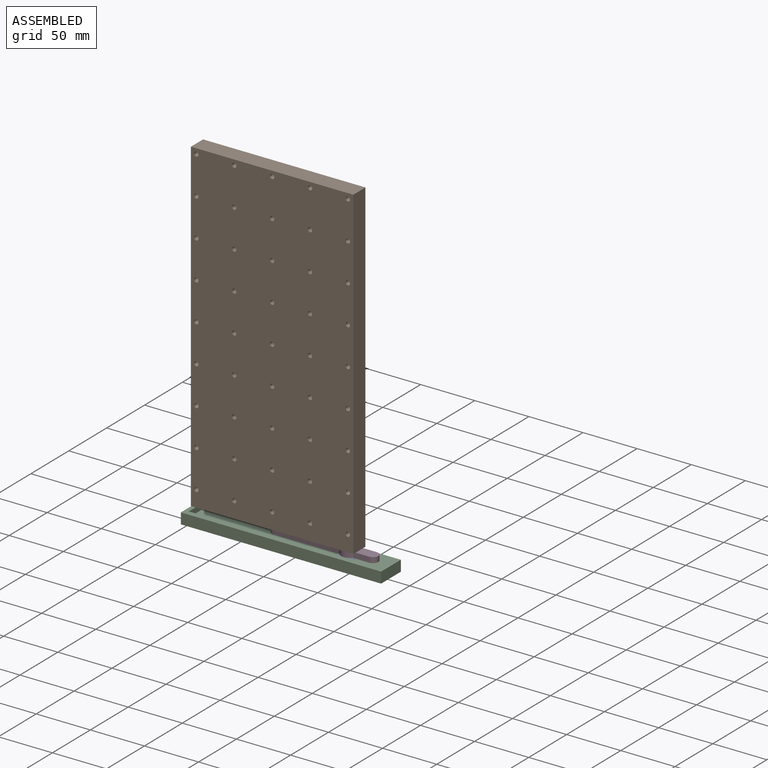
[diagram: assembled view]
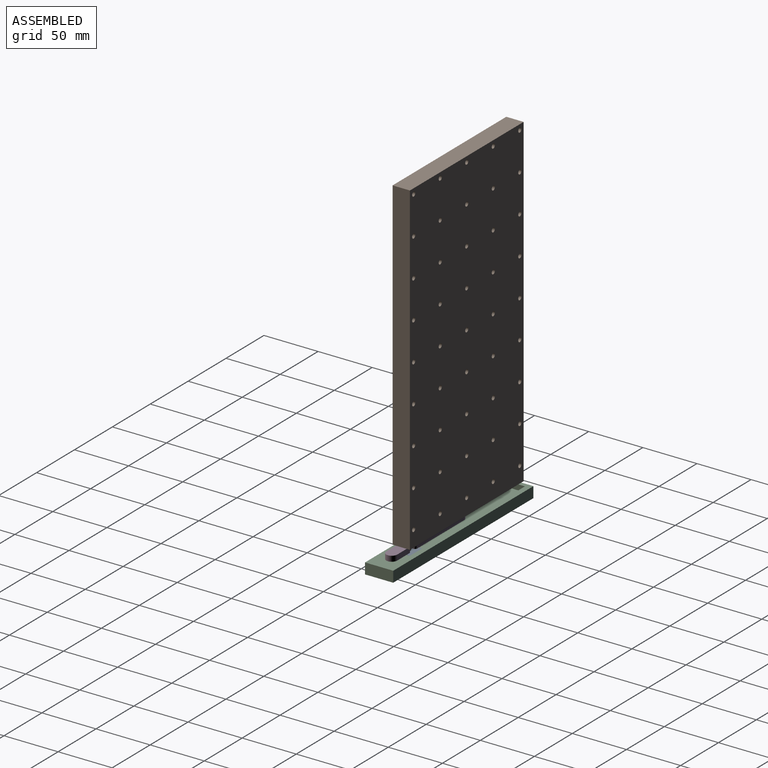
[diagram: assembled view, second angle]
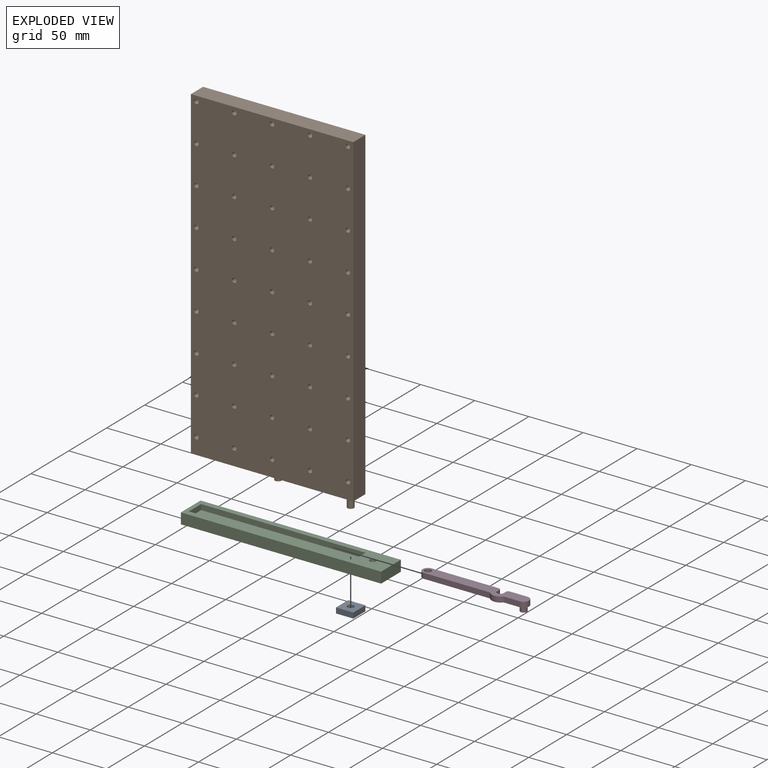
[diagram: exploded view]
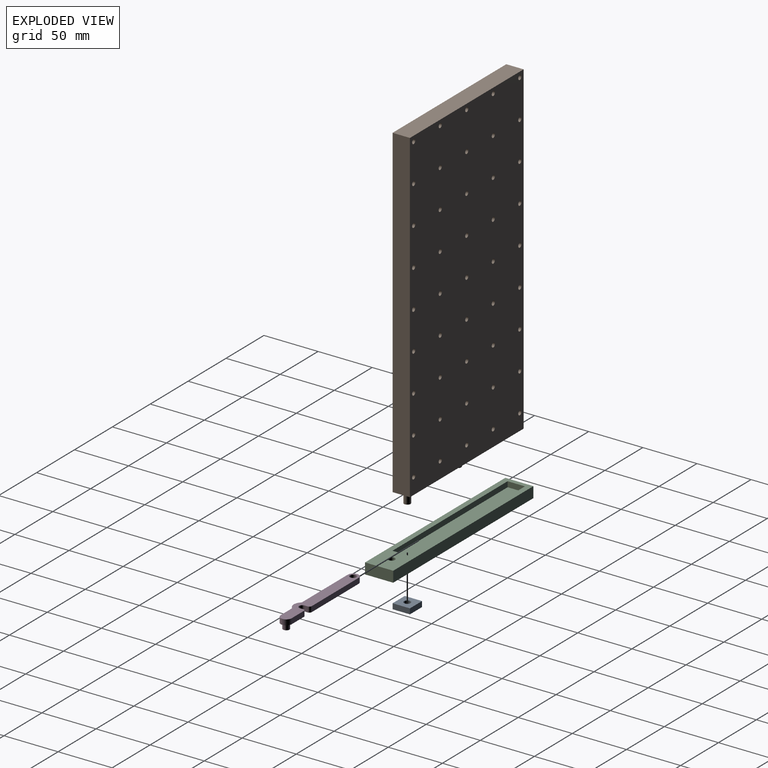
[diagram: exploded view, second angle]
ASSEMBLY  parts=4 mates=4
PART A: 7 faces, bbox 16x16x5 mm
  f0: plane 16x5mm, normal (1,0,0), area 80mm2, adj f1,f4,f5,f6
  f1: plane 16x5mm, normal (0,-1,0), area 80mm2, adj f0,f2,f5,f6
  f2: plane 16x5mm, normal (-1,0,0), area 80mm2, adj f1,f4,f5,f6
  f3: cylinder r=3mm len=6mm, axis (0,0,1), area 94.2mm2, adj f5,f6
  f4: plane 16x5mm, normal (0,1,0), area 80mm2, adj f0,f2,f5,f6
  f5: plane 16x16mm, normal (0,0,-1), area 227.7mm2, adj f0,f1,f2,f3,f4
  f6: plane 16x16mm, normal (0,0,1), area 227.7mm2, adj f0,f1,f2,f3,f4
PART B: 55 faces, bbox 150x16x310 mm
  f0: plane 150x16mm, normal (0,0,1), area 2400mm2, adj f1,f3,f4,f5
  f1: plane 300x16mm, normal (-1,0,0), area 4800mm2, adj f0,f2,f4,f5
  f2: plane 150x16mm, normal (0,0,-1), area 2343.5mm2, adj f1,f3,f4,f5,f6,f8
  f3: plane 300x16mm, normal (1,0,0), area 4800mm2, adj f0,f2,f4,f5
  f4: plane 300x150mm, normal (0,-1,0), area 44434.5mm2, adj f0,f1,f2,f3,f10,f11,f12,f13
  f5: plane 300x150mm, normal (0,1,0), area 44434.5mm2, adj f0,f1,f2,f3,f10,f11,f12,f13
  f6: cylinder r=3mm len=6mm, axis (0,0,1), area 94.2mm2, adj f2,f7
  f7: plane 6x6mm, normal (0,0,-1), area 28.3mm2, adj f6
  f8: cylinder r=3mm len=10mm, axis (0,0,1), area 188.5mm2, adj f2,f9
  f9: plane 6x6mm, normal (0,0,-1), area 28.3mm2, adj f8
  f10: cylinder r=2mm len=16mm, axis (0,-1,0), area 201.1mm2, adj f4,f5
  f11: cylinder r=2mm len=16mm, axis (0,-1,0), area 201.1mm2, adj f4,f5
  f12: cylinder r=2mm len=16mm, axis (0,-1,0), area 201.1mm2, adj f4,f5
  f13: cylinder r=2mm len=16mm, axis (0,-1,0), area 201.1mm2, adj f4,f5
  f14: cylinder r=2mm len=16mm, axis (0,-1,0), area 201.1mm2, adj f4,f5
  f15: cylinder r=2mm len=16mm, axis (0,-1,0), area 201.1mm2, adj f4,f5
  f16: cylinder r=2mm len=16mm, axis (0,-1,0), area 201.1mm2, adj f4,f5
  f17: cylinder r=2mm len=16mm, axis (0,-1,0), area 201.1mm2, adj f4,f5
  f18: cylinder r=2mm len=16mm, axis (0,-1,0), area 201.1mm2, adj f4,f5
  f19: cylinder r=2mm len=16mm, axis (0,-1,0), area 201.1mm2, adj f4,f5
  f20: cylinder r=2mm len=16mm, axis (0,-1,0), area 201.1mm2, adj f4,f5
  f21: cylinder r=2mm len=16mm, axis (0,-1,0), area 201.1mm2, adj f4,f5
  f22: cylinder r=2mm len=16mm, axis (0,-1,0), area 201.1mm2, adj f4,f5
  f23: cylinder r=2mm len=16mm, axis (0,-1,0), area 201.1mm2, adj f4,f5
  f24: cylinder r=2mm len=16mm, axis (0,-1,0), area 201.1mm2, adj f4,f5
  f25: cylinder r=2mm len=16mm, axis (0,-1,0), area 201.1mm2, adj f4,f5
  f26: cylinder r=2mm len=16mm, axis (0,-1,0), area 201.1mm2, adj f4,f5
  f27: cylinder r=2mm len=16mm, axis (0,-1,0), area 201.1mm2, adj f4,f5
  f28: cylinder r=2mm len=16mm, axis (0,-1,0), area 201.1mm2, adj f4,f5
  f29: cylinder r=2mm len=16mm, axis (0,-1,0), area 201.1mm2, adj f4,f5
  f30: cylinder r=2mm len=16mm, axis (0,-1,0), area 201.1mm2, adj f4,f5
  f31: cylinder r=2mm len=16mm, axis (0,-1,0), area 201.1mm2, adj f4,f5
  f32: cylinder r=2mm len=16mm, axis (0,-1,0), area 201.1mm2, adj f4,f5
  f33: cylinder r=2mm len=16mm, axis (0,-1,0), area 201.1mm2, adj f4,f5
  f34: cylinder r=2mm len=16mm, axis (0,-1,0), area 201.1mm2, adj f4,f5
  f35: cylinder r=2mm len=16mm, axis (0,-1,0), area 201.1mm2, adj f4,f5
  f36: cylinder r=2mm len=16mm, axis (0,-1,0), area 201.1mm2, adj f4,f5
  f37: cylinder r=2mm len=16mm, axis (0,-1,0), area 201.1mm2, adj f4,f5
  f38: cylinder r=2mm len=16mm, axis (0,-1,0), area 201.1mm2, adj f4,f5
  f39: cylinder r=2mm len=16mm, axis (0,-1,0), area 201.1mm2, adj f4,f5
  f40: cylinder r=2mm len=16mm, axis (0,-1,0), area 201.1mm2, adj f4,f5
  f41: cylinder r=2mm len=16mm, axis (0,-1,0), area 201.1mm2, adj f4,f5
  f42: cylinder r=2mm len=16mm, axis (0,-1,0), area 201.1mm2, adj f4,f5
  f43: cylinder r=2mm len=16mm, axis (0,-1,0), area 201.1mm2, adj f4,f5
  f44: cylinder r=2mm len=16mm, axis (0,-1,0), area 201.1mm2, adj f4,f5
  f45: cylinder r=2mm len=16mm, axis (0,-1,0), area 201.1mm2, adj f4,f5
  f46: cylinder r=2mm len=16mm, axis (0,-1,0), area 201.1mm2, adj f4,f5
  f47: cylinder r=2mm len=16mm, axis (0,-1,0), area 201.1mm2, adj f4,f5
  f48: cylinder r=2mm len=16mm, axis (0,-1,0), area 201.1mm2, adj f4,f5
  f49: cylinder r=2mm len=16mm, axis (0,-1,0), area 201.1mm2, adj f4,f5
  f50: cylinder r=2mm len=16mm, axis (0,-1,0), area 201.1mm2, adj f4,f5
  f51: cylinder r=2mm len=16mm, axis (0,-1,0), area 201.1mm2, adj f4,f5
  f52: cylinder r=2mm len=16mm, axis (0,-1,0), area 201.1mm2, adj f4,f5
  f53: cylinder r=2mm len=16mm, axis (0,-1,0), area 201.1mm2, adj f4,f5
  f54: cylinder r=2mm len=16mm, axis (0,-1,0), area 201.1mm2, adj f4,f5
PART C: 13 faces, bbox 185x26x10 mm
  f0: plane 185x10mm, normal (0,-1,0), area 1850mm2, adj f1,f7,f9,f10
  f1: plane 26x10mm, normal (-1,0,0), area 260mm2, adj f0,f2,f7,f9
  f2: plane 185x10mm, normal (0,1,0), area 1850mm2, adj f1,f7,f9,f10
  f3: plane 152x5mm, normal (0,-1,0), area 760mm2, adj f4,f6,f7,f8
  f4: plane 16x5mm, normal (1,0,0), area 80mm2, adj f3,f5,f7,f8
  f5: plane 152x5mm, normal (0,1,0), area 760mm2, adj f4,f6,f7,f8
  f6: plane 16x5mm, normal (-1,0,0), area 80mm2, adj f3,f5,f7,f8
  f7: plane 185x26mm, normal (0,0,1), area 2349.7mm2, adj f0,f1,f2,f3,f4,f5,f6,f10
  f8: plane 152x16mm, normal (0,0,1), area 2432mm2, adj f3,f4,f5,f6
  f9: plane 185x26mm, normal (0,0,-1), area 4810mm2, adj f0,f1,f2,f10
  f10: plane 26x10mm, normal (1,0,0), area 260mm2, adj f0,f2,f7,f9
  f11: cylinder r=3mm len=6mm, axis (0,0,1), area 94.2mm2, adj f7,f12
  f12: plane 6x6mm, normal (0,0,1), area 28.3mm2, adj f11
PART D: 19 faces, bbox 98.4x13x10 mm
  f0: cylinder r=5mm len=10mm, axis (0,0,1), area 78.5mm2, adj f1,f9,f11,f12
  f1: plane 14.22x5mm, normal (0,-1,0), area 71.1mm2, adj f0,f11,f12,f16
  f2: cylinder r=8mm len=11.43mm, axis (0,0,1), area 63.6mm2, adj f11,f12,f15,f16
  f3: plane 59.86x5mm, normal (0,-1,0), area 299.3mm2, adj f4,f11,f12,f15
  f4: cylinder r=5mm len=10mm, axis (0,0,1), area 78.5mm2, adj f3,f5,f11,f12
  f5: plane 62x5mm, normal (0,1,0), area 310mm2, adj f4,f11,f12,f17
  f6: plane 5x3mm, normal (1,0,0), area 15mm2, adj f7,f11,f12,f17
  f7: cylinder r=3mm len=6mm, axis (0,0,1), area 47.1mm2, adj f6,f8,f11,f12
  f8: plane 5x3mm, normal (-1,0,0), area 15mm2, adj f7,f11,f12,f18
  f9: plane 16.36x5mm, normal (0,1,0), area 81.8mm2, adj f0,f11,f12,f18
  f10: cylinder r=3mm len=6mm, axis (0,0,1), area 94.2mm2, adj f11,f12
  f11: plane 98.36x13mm, normal (0,0,-1), area 886.1mm2, adj f0,f1,f2,f3,f4,f5,f6,f7
  f12: plane 98.36x13mm, normal (0,0,1), area 914.3mm2, adj f0,f1,f2,f3,f4,f5,f6,f7
  f13: cylinder r=3mm len=6mm, axis (0,0,1), area 94.2mm2, adj f11,f14
  f14: plane 6x6mm, normal (0,0,-1), area 28.3mm2, adj f13
  f15: cylinder r=2mm len=5mm, axis (0,0,1), area 8mm2, adj f2,f3,f11,f12
  f16: cylinder r=2mm len=5mm, axis (0,0,1), area 8mm2, adj f1,f2,f11,f12
  f17: cylinder r=2mm len=5mm, axis (0,0,-1), area 15.7mm2, adj f5,f6,f11,f12
  f18: cylinder r=2mm len=5mm, axis (0,0,1), area 15.7mm2, adj f8,f9,f11,f12
PLACE A t=(224.62,83.8,-68.45)mm
PLACE B rot(axis=(0,0,-1),180deg) t=(70.31,67.8,-68.45)mm
PLACE C t=(89.81,83.8,-63.45)mm fixed
PLACE D t=(89.81,83.8,-68.45)mm
MATE revolute B.f8 <-> A.f3  axis (0,0,1) through (147.47,75.8,-65.67)mm
MATE revolute D.f0 <-> C.f11  axis (0,0,-1) through (168.02,75.8,-65.67)mm
MATE slider A.f2 <-> C.f4  axis (-1,0,0) through (139.47,75.8,-63.17)mm
MATE revolute D.f4 <-> B.f2  axis (0,0,1) through (79.66,75.8,-55.67)mm
